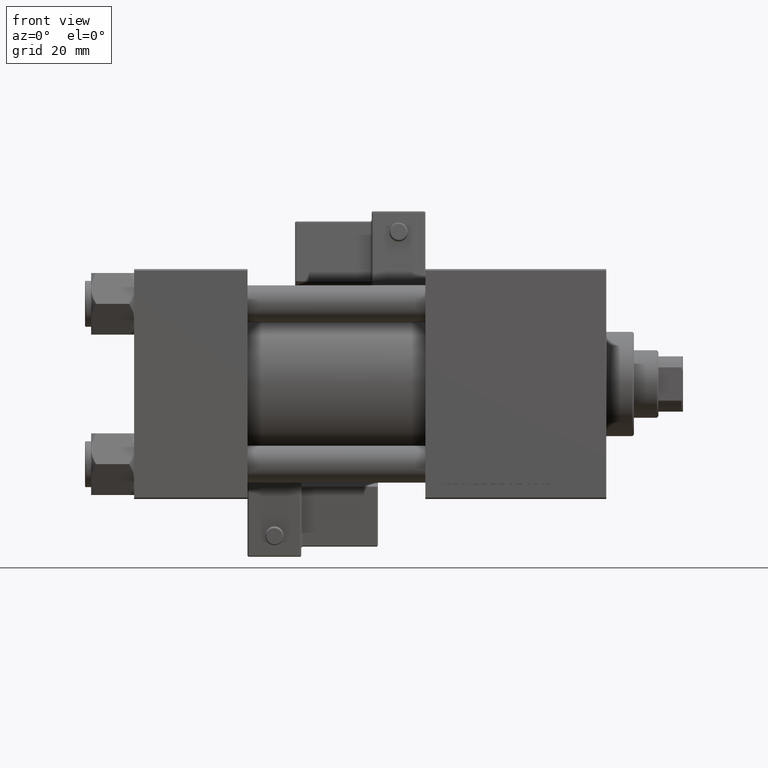
[diagram: clean part render]
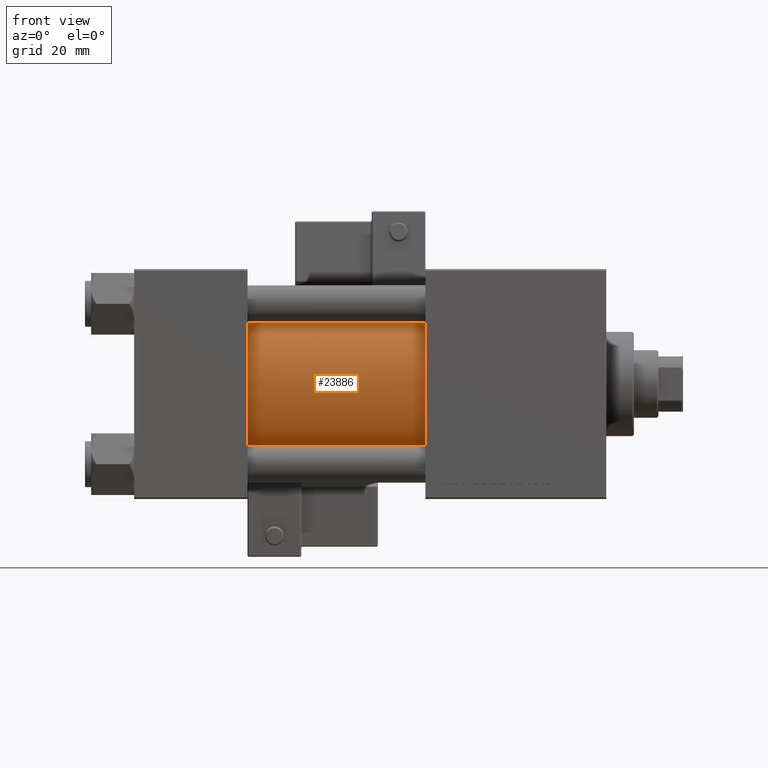
[diagram: same view with one face highlighted and labeled with its STEP entity id]
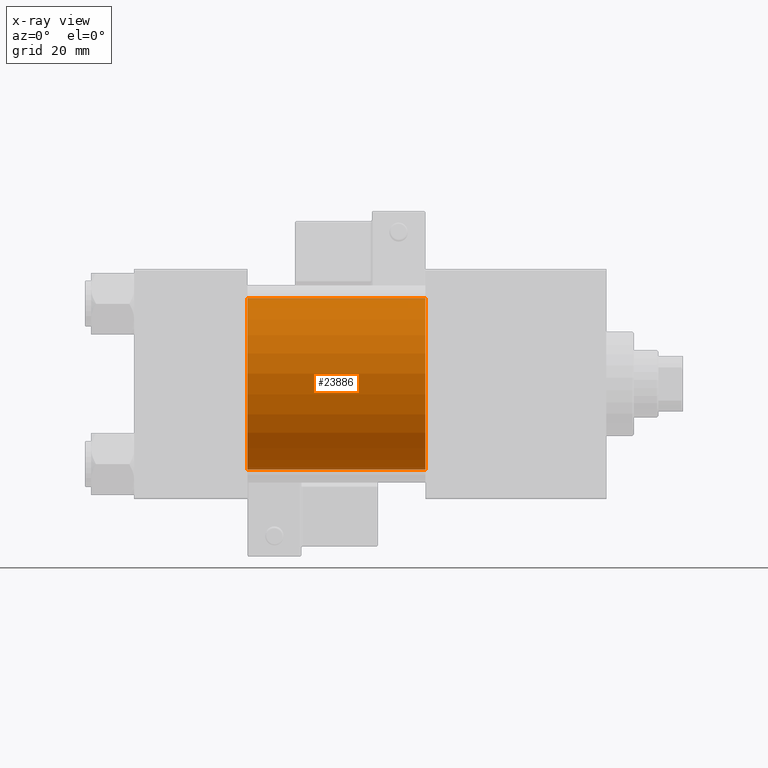
[diagram: x-ray of the same camera — body ghosted, the highlighted face saturated]
A machine part, front view. The second image highlights one B-rep face of the part: STEP entity #23886.
The next image is the same camera in x-ray: the body ghosted, the highlighted face saturated — about 2% of this face is hidden behind the body in this view.
In plain terms, the highlighted cylindrical surface (partial cylindrical patch) has radius 28 mm, axis along (-1, -0, -0).
Its self-contained STEP definition (entity closure, byte-faithful):
#1285 = VECTOR ( 'NONE', #29797, 1000.000000000000000 ) ;
#3633 = LINE ( 'NONE', #47358, #33036 ) ;
#4778 = CARTESIAN_POINT ( 'NONE',  ( 95.00000000000000000, -2.602085213965210642E-15, 28.00000000000000000 ) ) ;
#5326 = ORIENTED_EDGE ( 'NONE', *, *, #16566, .F. ) ;
#6429 = VERTEX_POINT ( 'NONE', #25470 ) ;
#6646 = ORIENTED_EDGE ( 'NONE', *, *, #39710, .F. ) ;
#10199 = LINE ( 'NONE', #38553, #1285 ) ;
#10578 = CARTESIAN_POINT ( 'NONE',  ( 37.00000000000000000, -2.602085213965210642E-15, 28.00000000000000000 ) ) ;
#10813 = DIRECTION ( 'NONE',  ( -1.000000000000000000, -0.000000000000000000, -0.000000000000000000 ) ) ;
#14439 = CYLINDRICAL_SURFACE ( 'NONE', #46981, 28.00000000000000000 ) ;
#16566 = EDGE_CURVE ( 'NONE', #6429, #40069, #3633, .T. ) ;
#19444 = EDGE_LOOP ( 'NONE', ( #5326, #6646, #38376, #22939 ) ) ;
#21732 = VERTEX_POINT ( 'NONE', #10578 ) ;
#22810 = DIRECTION ( 'NONE',  ( 0.000000000000000000, 0.000000000000000000, -1.000000000000000000 ) ) ;
#22939 = ORIENTED_EDGE ( 'NONE', *, *, #45802, .T. ) ;
#23528 = CARTESIAN_POINT ( 'NONE',  ( 37.00000000000000000, 8.269258236473776482E-16, -28.00000000000000000 ) ) ;
#23845 = EDGE_CURVE ( 'NONE', #32871, #21732, #10199, .T. ) ;
#23886 = ADVANCED_FACE ( 'NONE', ( #34564 ), #14439, .T. ) ;
#23930 = CARTESIAN_POINT ( 'NONE',  ( 37.00000000000000000, -2.602085213965210642E-15, 0.000000000000000000 ) ) ;
#25470 = CARTESIAN_POINT ( 'NONE',  ( 95.00000000000000000, 8.269258236473776482E-16, -28.00000000000000000 ) ) ;
#26095 = DIRECTION ( 'NONE',  ( -1.000000000000000000, -0.000000000000000000, -0.000000000000000000 ) ) ;
#26406 = CIRCLE ( 'NONE', #39097, 28.00000000000000000 ) ;
#29797 = DIRECTION ( 'NONE',  ( -1.000000000000000000, -0.000000000000000000, -0.000000000000000000 ) ) ;
#30237 = DIRECTION ( 'NONE',  ( 1.000000000000000000, 0.000000000000000000, 0.000000000000000000 ) ) ;
#32871 = VERTEX_POINT ( 'NONE', #4778 ) ;
#33036 = VECTOR ( 'NONE', #10813, 1000.000000000000000 ) ;
#34564 = FACE_OUTER_BOUND ( 'NONE', #19444, .T. ) ;
#36131 = DIRECTION ( 'NONE',  ( 0.000000000000000000, 0.000000000000000000, 1.000000000000000000 ) ) ;
#36336 = CIRCLE ( 'NONE', #46490, 28.00000000000000000 ) ;
#38376 = ORIENTED_EDGE ( 'NONE', *, *, #23845, .T. ) ;
#38553 = CARTESIAN_POINT ( 'NONE',  ( 95.00000000000000000, -2.602085213965210642E-15, 28.00000000000000000 ) ) ;
#39097 = AXIS2_PLACEMENT_3D ( 'NONE', #23930, #40106, #36131 ) ;
#39710 = EDGE_CURVE ( 'NONE', #32871, #6429, #36336, .T. ) ;
#40069 = VERTEX_POINT ( 'NONE', #23528 ) ;
#40106 = DIRECTION ( 'NONE',  ( 1.000000000000000000, -0.000000000000000000, 0.000000000000000000 ) ) ;
#41986 = CARTESIAN_POINT ( 'NONE',  ( 95.00000000000000000, -2.602085213965210642E-15, 0.000000000000000000 ) ) ;
#42259 = DIRECTION ( 'NONE',  ( 0.000000000000000000, 0.000000000000000000, 1.000000000000000000 ) ) ;
#45802 = EDGE_CURVE ( 'NONE', #21732, #40069, #26406, .T. ) ;
#46490 = AXIS2_PLACEMENT_3D ( 'NONE', #50638, #30237, #22810 ) ;
#46981 = AXIS2_PLACEMENT_3D ( 'NONE', #41986, #26095, #42259 ) ;
#47358 = CARTESIAN_POINT ( 'NONE',  ( 95.00000000000000000, 8.269258236473776482E-16, -28.00000000000000000 ) ) ;
#50638 = CARTESIAN_POINT ( 'NONE',  ( 95.00000000000000000, -2.602085213965210642E-15, 0.000000000000000000 ) ) ;